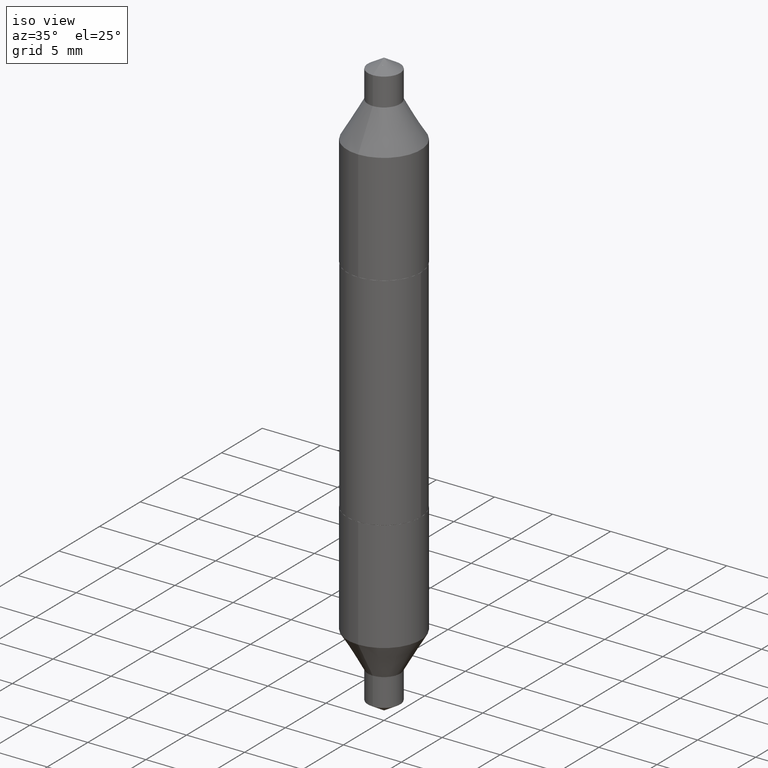
[diagram: clean part render]
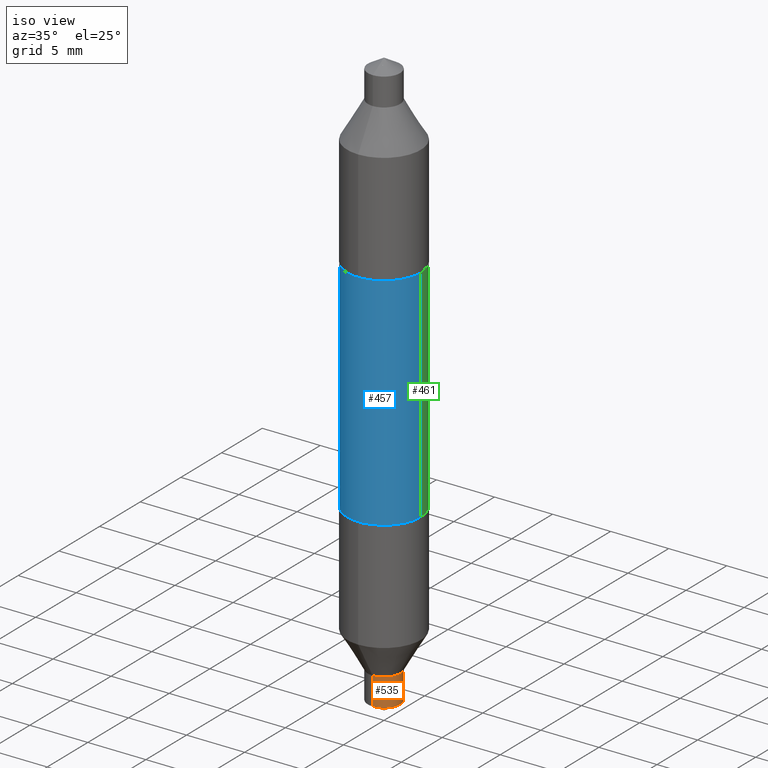
[diagram: same view with three faces highlighted in distinct colors, each labeled with its STEP entity id]
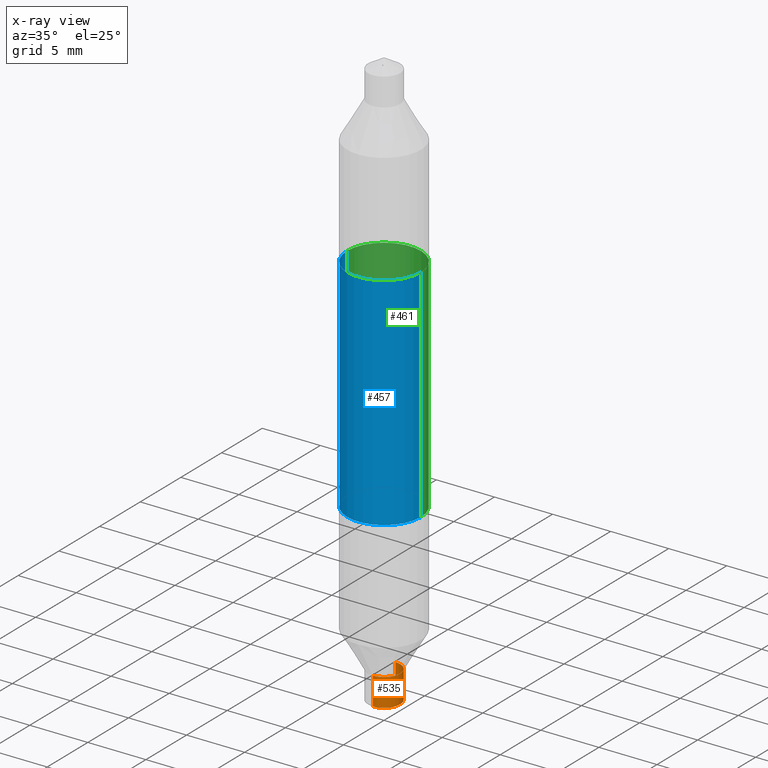
[diagram: x-ray of the same camera — body ghosted, the three highlighted faces saturated]
A machine part, iso view with three faces highlighted in distinct colors.
The next image is the same camera in x-ray (body ghosted, the three faces saturated) — at least one of them is partly hidden behind the body in this view.
Their STEP definitions:

[orange] entity #535 — the highlighted cylindrical surface (edge-blend (fillet) strip) has radius 1.3894 mm, axis along (-0, 0, 1).
#2 = VERTEX_POINT ( 'NONE', #68 ) ;
#14 = LINE ( 'NONE', #218, #312 ) ;
#29 = ORIENTED_EDGE ( 'NONE', *, *, #87, .T. ) ;
#49 = CYLINDRICAL_SURFACE ( 'NONE', #680, 0.05469999999999999168 ) ;
#64 = DIRECTION ( 'NONE',  ( -2.454362535592602182E-29, 3.478745012132013433E-15, 1.000000000000000000 ) ) ;
#67 = ORIENTED_EDGE ( 'NONE', *, *, #104, .F. ) ;
#68 = CARTESIAN_POINT ( 'NONE',  ( 3.886668764607984577E-16, 0.05469999999999661938, -0.9671329241391928289 ) ) ;
#79 = VERTEX_POINT ( 'NONE', #667 ) ;
#87 = EDGE_CURVE ( 'NONE', #2, #79, #587, .T. ) ;
#102 = CARTESIAN_POINT ( 'NONE',  ( 9.170508023194260837E-30, -1.309305502066179347E-15, -0.3749999999999999445 ) ) ;
#104 = EDGE_CURVE ( 'NONE', #105, #79, #364, .T. ) ;
#105 = VERTEX_POINT ( 'NONE', #648 ) ;
#113 = FACE_OUTER_BOUND ( 'NONE', #455, .T. ) ;
#150 = CIRCLE ( 'NONE', #241, 0.05469999999999999168 ) ;
#206 = CARTESIAN_POINT ( 'NONE',  ( -3.819680584694150215E-16, -0.05470000000000337093, -0.9671329241391926068 ) ) ;
#214 = DIRECTION ( 'NONE',  ( -2.454362535592602182E-29, 3.478745012132013039E-15, 1.000000000000000000 ) ) ;
#218 = CARTESIAN_POINT ( 'NONE',  ( -3.819680584694295168E-16, -0.05470000000000129620, -0.3749999999999997780 ) ) ;
#219 = ORIENTED_EDGE ( 'NONE', *, *, #296, .F. ) ;
#241 = AXIS2_PLACEMENT_3D ( 'NONE', #295, #571, #520 ) ;
#277 = VECTOR ( 'NONE', #593, 39.37007874015748143 ) ;
#295 = CARTESIAN_POINT ( 'NONE',  ( 2.370359667417557100E-29, -3.369184958434540191E-15, -0.9671329241391927178 ) ) ;
#296 = EDGE_CURVE ( 'NONE', #701, #105, #14, .T. ) ;
#299 = ORIENTED_EDGE ( 'NONE', *, *, #363, .T. ) ;
#312 = VECTOR ( 'NONE', #64, 39.37007874015748143 ) ;
#363 = EDGE_CURVE ( 'NONE', #701, #2, #150, .T. ) ;
#364 = CIRCLE ( 'NONE', #588, 0.05469999999999999168 ) ;
#377 = CARTESIAN_POINT ( 'NONE',  ( 2.138341600030304914E-29, -3.040329020103069038E-15, -0.8726000000000000423 ) ) ;
#424 = DIRECTION ( 'NONE',  ( -6.982962677686265922E-15, -1.000000000000000000, 2.497118824190368833E-15 ) ) ;
#425 = DIRECTION ( 'NONE',  ( -6.982962677686265922E-15, -1.000000000000000000, 3.745678236285553052E-15 ) ) ;
#455 = EDGE_LOOP ( 'NONE', ( #299, #29, #67, #219 ) ) ;
#520 = DIRECTION ( 'NONE',  ( -6.982962677686265922E-15, -1.000000000000000000, 2.497118824190368833E-15 ) ) ;
#535 = ADVANCED_FACE ( 'NONE', ( #113 ), #49, .T. ) ;
#571 = DIRECTION ( 'NONE',  ( -2.454362535592602182E-29, 3.478745012132013039E-15, 1.000000000000000000 ) ) ;
#587 = LINE ( 'NONE', #600, #277 ) ;
#588 = AXIS2_PLACEMENT_3D ( 'NONE', #377, #214, #424 ) ;
#591 = DIRECTION ( 'NONE',  ( -2.454362535592602182E-29, 3.478745012132013039E-15, 1.000000000000000000 ) ) ;
#593 = DIRECTION ( 'NONE',  ( -2.454362535592602182E-29, 3.478745012132013433E-15, 1.000000000000000000 ) ) ;
#600 = CARTESIAN_POINT ( 'NONE',  ( 3.886668764607838145E-16, 0.05469999999999868717, -0.3750000000000001665 ) ) ;
#648 = CARTESIAN_POINT ( 'NONE',  ( -3.819680584694172401E-16, -0.05470000000000303092, -0.8725999999999998202 ) ) ;
#667 = CARTESIAN_POINT ( 'NONE',  ( 3.886668764607983591E-16, 0.05469999999999694551, -0.8726000000000001533 ) ) ;
#680 = AXIS2_PLACEMENT_3D ( 'NONE', #102, #591, #425 ) ;
#701 = VERTEX_POINT ( 'NONE', #206 ) ;

[blue] entity #457 — the highlighted cylindrical surface (partial cylindrical patch) has radius 3.175 mm, axis along (-0, 0, 1).
#23 = CIRCLE ( 'NONE', #454, 0.1250000000000000278 ) ;
#33 = VECTOR ( 'NONE', #267, 39.37007874015748143 ) ;
#51 = AXIS2_PLACEMENT_3D ( 'NONE', #515, #458, #148 ) ;
#133 = CIRCLE ( 'NONE', #252, 0.1250000000000000278 ) ;
#143 = EDGE_CURVE ( 'NONE', #326, #269, #23, .T. ) ;
#148 = DIRECTION ( 'NONE',  ( 1.000000000000000000, -6.982962677686265922E-15, 4.876176775795935232E-29 ) ) ;
#152 = LINE ( 'NONE', #642, #216 ) ;
#169 = DIRECTION ( 'NONE',  ( -2.445468806185136597E-29, 3.491481338843145583E-15, 1.000000000000000000 ) ) ;
#216 = VECTOR ( 'NONE', #585, 39.37007874015748143 ) ;
#252 = AXIS2_PLACEMENT_3D ( 'NONE', #647, #169, #309 ) ;
#267 = DIRECTION ( 'NONE',  ( -2.445468806185136877E-29, 3.491481338843145188E-15, 1.000000000000000000 ) ) ;
#269 = VERTEX_POINT ( 'NONE', #546 ) ;
#286 = EDGE_CURVE ( 'NONE', #303, #326, #479, .T. ) ;
#303 = VERTEX_POINT ( 'NONE', #366 ) ;
#309 = DIRECTION ( 'NONE',  ( 1.000000000000000000, -6.982962677686267499E-15, 0.000000000000000000 ) ) ;
#311 = ORIENTED_EDGE ( 'NONE', *, *, #286, .F. ) ;
#318 = CARTESIAN_POINT ( 'NONE',  ( -0.1250000000000000278, 8.881784197001254296E-16, -6.148668862818633629E-30 ) ) ;
#326 = VERTEX_POINT ( 'NONE', #413 ) ;
#355 = ORIENTED_EDGE ( 'NONE', *, *, #143, .F. ) ;
#366 = CARTESIAN_POINT ( 'NONE',  ( -0.1250000000000000278, -4.193813416966324631E-16, -0.3744999999999999996 ) ) ;
#380 = DIRECTION ( 'NONE',  ( 1.000000000000000000, -6.982962677686267499E-15, 0.000000000000000000 ) ) ;
#413 = CARTESIAN_POINT ( 'NONE',  ( -0.1250000000000000555, 8.881784197001251337E-16, 0.3744999999999999996 ) ) ;
#454 = AXIS2_PLACEMENT_3D ( 'NONE', #494, #608, #380 ) ;
#457 = ADVANCED_FACE ( 'NONE', ( #512 ), #682, .T. ) ;
#458 = DIRECTION ( 'NONE',  ( -2.445468806185136597E-29, 3.491481338843145583E-15, 1.000000000000000000 ) ) ;
#479 = LINE ( 'NONE', #318, #33 ) ;
#492 = VERTEX_POINT ( 'NONE', #634 ) ;
#493 = EDGE_LOOP ( 'NONE', ( #311, #601, #576, #355 ) ) ;
#494 = CARTESIAN_POINT ( 'NONE',  ( -9.158280679163337026E-30, 1.307559761396758041E-15, 0.3744999999999999996 ) ) ;
#512 = FACE_OUTER_BOUND ( 'NONE', #493, .T. ) ;
#515 = CARTESIAN_POINT ( 'NONE',  ( 0.000000000000000000, 0.000000000000000000, 0.000000000000000000 ) ) ;
#546 = CARTESIAN_POINT ( 'NONE',  ( 0.1250000000000000278, 4.346894266859744553E-16, 0.3744999999999999996 ) ) ;
#576 = ORIENTED_EDGE ( 'NONE', *, *, #580, .T. ) ;
#580 = EDGE_CURVE ( 'NONE', #492, #269, #152, .T. ) ;
#585 = DIRECTION ( 'NONE',  ( -2.445468806185136877E-29, 3.491481338843145188E-15, 1.000000000000000000 ) ) ;
#601 = ORIENTED_EDGE ( 'NONE', *, *, #687, .T. ) ;
#608 = DIRECTION ( 'NONE',  ( -2.445468806185136597E-29, 3.491481338843145583E-15, 1.000000000000000000 ) ) ;
#634 = CARTESIAN_POINT ( 'NONE',  ( 0.1250000000000000278, -2.180430096107541577E-15, -0.3744999999999999996 ) ) ;
#642 = CARTESIAN_POINT ( 'NONE',  ( 0.1250000000000000278, -8.728703347107834374E-16, 6.095220969744920442E-30 ) ) ;
#647 = CARTESIAN_POINT ( 'NONE',  ( 9.158280679163337026E-30, -1.307559761396758041E-15, -0.3744999999999999996 ) ) ;
#682 = CYLINDRICAL_SURFACE ( 'NONE', #51, 0.1250000000000000278 ) ;
#687 = EDGE_CURVE ( 'NONE', #303, #492, #133, .T. ) ;

[green] entity #461 — the highlighted cylindrical surface (partial cylindrical patch) has radius 3.175 mm, axis along (-0, 0, 1).
#22 = ORIENTED_EDGE ( 'NONE', *, *, #580, .F. ) ;
#33 = VECTOR ( 'NONE', #267, 39.37007874015748143 ) ;
#36 = CARTESIAN_POINT ( 'NONE',  ( 0.000000000000000000, 0.000000000000000000, 0.000000000000000000 ) ) ;
#111 = DIRECTION ( 'NONE',  ( -2.445468806185136597E-29, 3.491481338843145583E-15, 1.000000000000000000 ) ) ;
#138 = DIRECTION ( 'NONE',  ( 1.000000000000000000, -6.982962677686265922E-15, 4.876176775795935232E-29 ) ) ;
#151 = AXIS2_PLACEMENT_3D ( 'NONE', #598, #696, #482 ) ;
#152 = LINE ( 'NONE', #642, #216 ) ;
#216 = VECTOR ( 'NONE', #585, 39.37007874015748143 ) ;
#234 = ORIENTED_EDGE ( 'NONE', *, *, #555, .T. ) ;
#267 = DIRECTION ( 'NONE',  ( -2.445468806185136877E-29, 3.491481338843145188E-15, 1.000000000000000000 ) ) ;
#269 = VERTEX_POINT ( 'NONE', #546 ) ;
#286 = EDGE_CURVE ( 'NONE', #303, #326, #479, .T. ) ;
#303 = VERTEX_POINT ( 'NONE', #366 ) ;
#318 = CARTESIAN_POINT ( 'NONE',  ( -0.1250000000000000278, 8.881784197001254296E-16, -6.148668862818633629E-30 ) ) ;
#326 = VERTEX_POINT ( 'NONE', #413 ) ;
#348 = AXIS2_PLACEMENT_3D ( 'NONE', #36, #629, #138 ) ;
#366 = CARTESIAN_POINT ( 'NONE',  ( -0.1250000000000000278, -4.193813416966324631E-16, -0.3744999999999999996 ) ) ;
#413 = CARTESIAN_POINT ( 'NONE',  ( -0.1250000000000000555, 8.881784197001251337E-16, 0.3744999999999999996 ) ) ;
#461 = ADVANCED_FACE ( 'NONE', ( #691 ), #577, .T. ) ;
#466 = EDGE_LOOP ( 'NONE', ( #234, #636, #556, #22 ) ) ;
#479 = LINE ( 'NONE', #318, #33 ) ;
#482 = DIRECTION ( 'NONE',  ( 1.000000000000000000, -6.982962677686267499E-15, 0.000000000000000000 ) ) ;
#492 = VERTEX_POINT ( 'NONE', #634 ) ;
#530 = CIRCLE ( 'NONE', #151, 0.1250000000000000278 ) ;
#546 = CARTESIAN_POINT ( 'NONE',  ( 0.1250000000000000278, 4.346894266859744553E-16, 0.3744999999999999996 ) ) ;
#555 = EDGE_CURVE ( 'NONE', #492, #303, #690, .T. ) ;
#556 = ORIENTED_EDGE ( 'NONE', *, *, #694, .F. ) ;
#577 = CYLINDRICAL_SURFACE ( 'NONE', #348, 0.1250000000000000278 ) ;
#580 = EDGE_CURVE ( 'NONE', #492, #269, #152, .T. ) ;
#582 = DIRECTION ( 'NONE',  ( 1.000000000000000000, -6.982962677686267499E-15, 0.000000000000000000 ) ) ;
#585 = DIRECTION ( 'NONE',  ( -2.445468806185136877E-29, 3.491481338843145188E-15, 1.000000000000000000 ) ) ;
#598 = CARTESIAN_POINT ( 'NONE',  ( -9.158280679163337026E-30, 1.307559761396758041E-15, 0.3744999999999999996 ) ) ;
#629 = DIRECTION ( 'NONE',  ( -2.445468806185136597E-29, 3.491481338843145583E-15, 1.000000000000000000 ) ) ;
#634 = CARTESIAN_POINT ( 'NONE',  ( 0.1250000000000000278, -2.180430096107541577E-15, -0.3744999999999999996 ) ) ;
#636 = ORIENTED_EDGE ( 'NONE', *, *, #286, .T. ) ;
#642 = CARTESIAN_POINT ( 'NONE',  ( 0.1250000000000000278, -8.728703347107834374E-16, 6.095220969744920442E-30 ) ) ;
#644 = CARTESIAN_POINT ( 'NONE',  ( 9.158280679163337026E-30, -1.307559761396758041E-15, -0.3744999999999999996 ) ) ;
#690 = CIRCLE ( 'NONE', #698, 0.1250000000000000278 ) ;
#691 = FACE_OUTER_BOUND ( 'NONE', #466, .T. ) ;
#694 = EDGE_CURVE ( 'NONE', #269, #326, #530, .T. ) ;
#696 = DIRECTION ( 'NONE',  ( -2.445468806185136597E-29, 3.491481338843145583E-15, 1.000000000000000000 ) ) ;
#698 = AXIS2_PLACEMENT_3D ( 'NONE', #644, #111, #582 ) ;